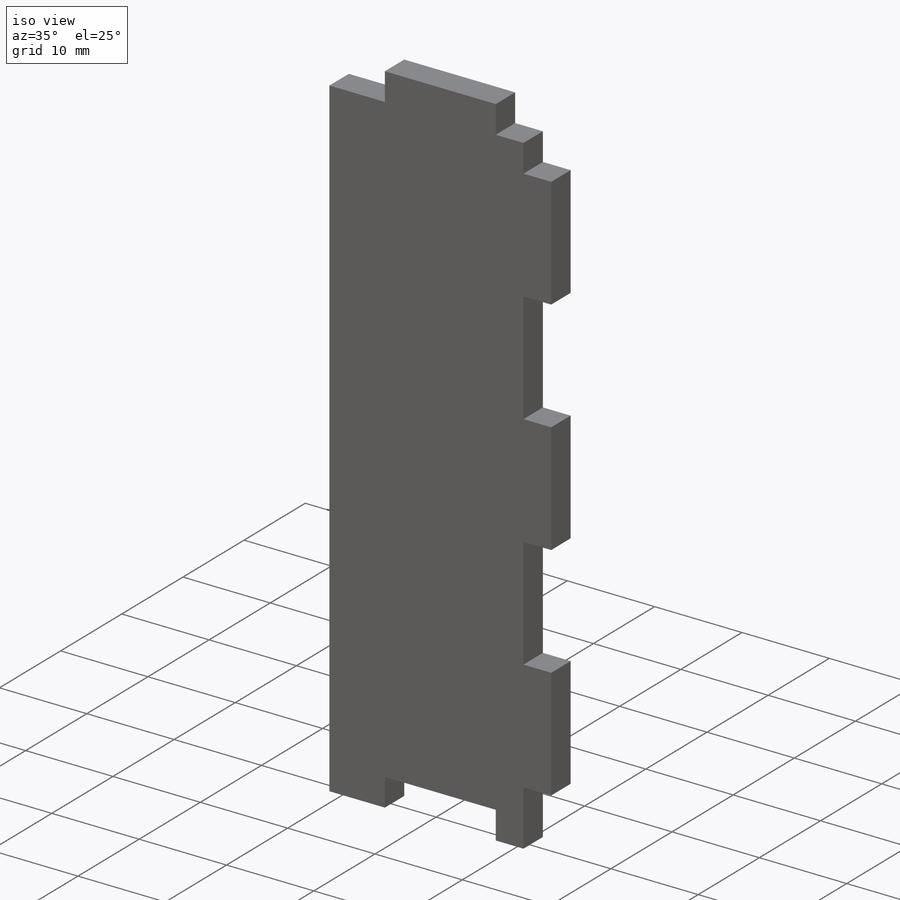
[diagram: iso view]
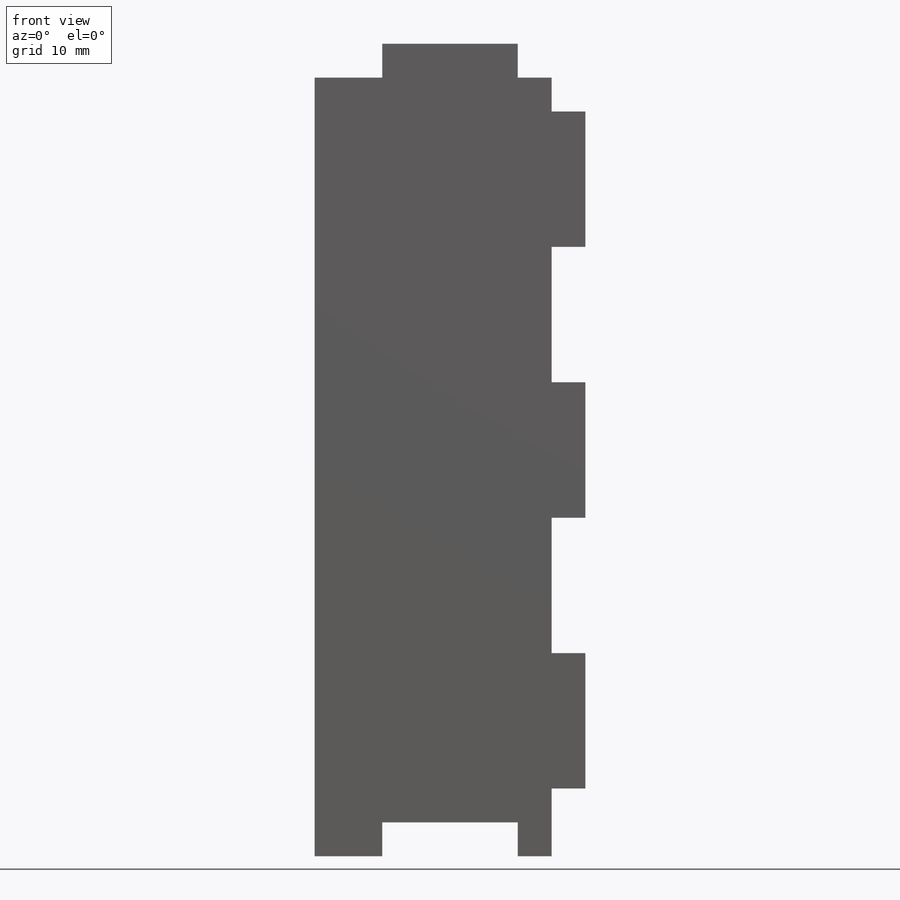
[diagram: front view]
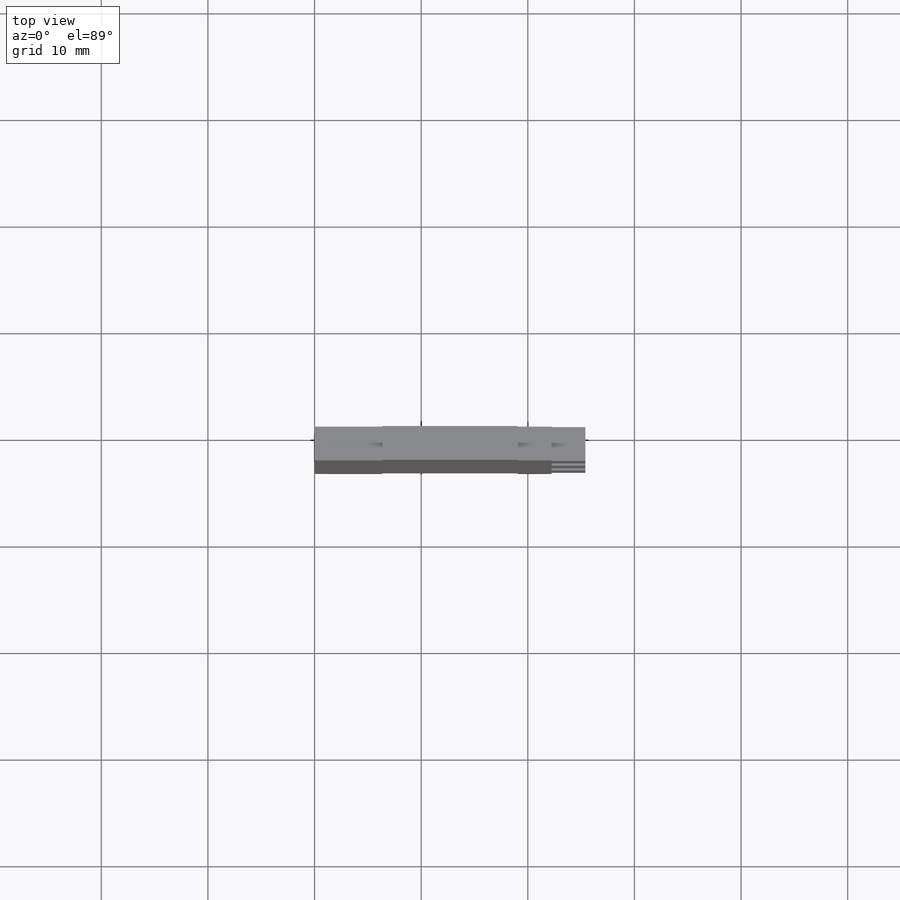
[diagram: top view]
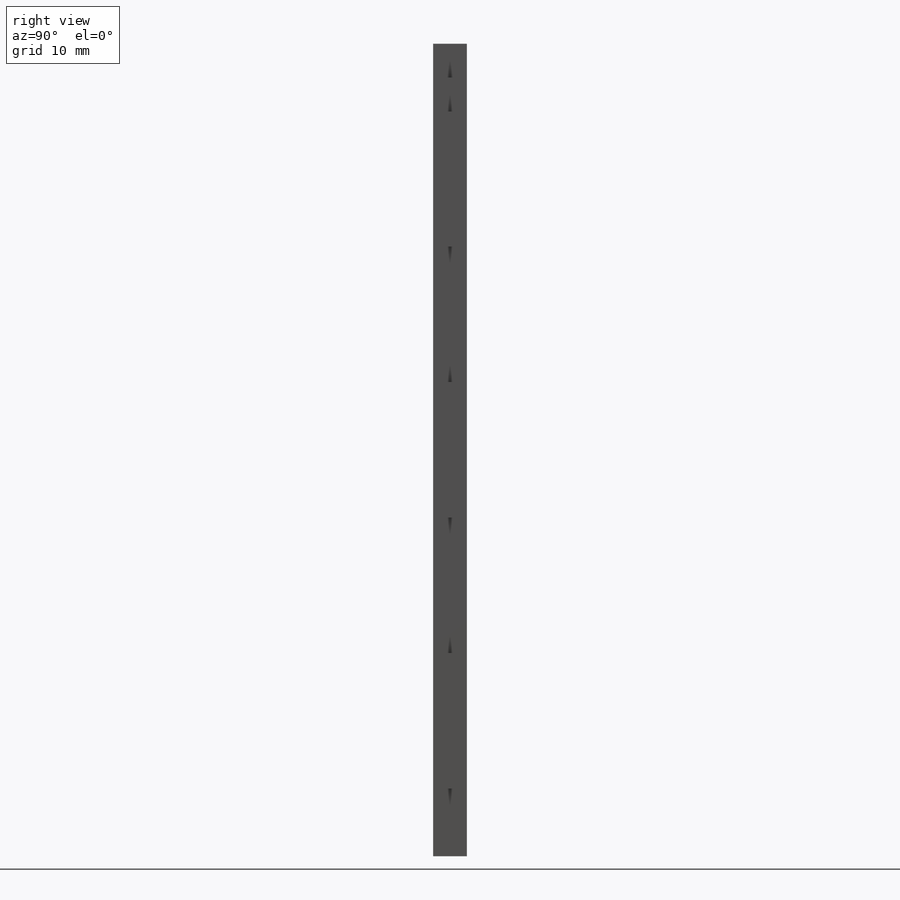
[diagram: right view]
SOLIDWORKS PART (.sldprt)
format: sldprt  version: not decoded by parser v0  size: 200,704 bytes
history: native  units: mm
features: sketch x5, cut_extrude x4, pattern_linear x3, material x1, extrude x1 (+17 scaffold rows collapsed)
feature tree (31):
  scaffold x17  (default folders/planes/origin — collapsed)
  material  "Material <not specified>"
  sketch  "Sketch1"  dims[D1=76.2mm D2=25.4mm]
  extrude  "Extrude1"  Depth=3.175mm
  sketch  "Sketch3"  dims[D1=6.35mm D2=3.175mm D3=6.35mm]
  cut_extrude  "Cut-Extrude1"  Depth=3.175mm
  pattern_linear  "LPattern1"  Count1=3 Count2=1 Spacing1=69.85mm Spacing2=2.54mm
  sketch  "Sketch4"  dims[D1=12.7mm D2=3.175mm D3=19.05mm]
  cut_extrude  "Cut-Extrude2"  Depth=3.175mm
  pattern_linear  "LPattern2"  Count1=2 Count2=1 Spacing1=25.4mm Spacing2=2.54mm
  sketch  "Sketch5"  dims[D1=6.35mm D2=12.7mm D3=3.175mm]
  cut_extrude  "Cut-Extrude3"  Depth=3.175mm
  sketch  "Sketch6"  dims[D1=6.35mm D2=3.175mm]
  cut_extrude  "Cut-Extrude4"  Depth=3.175mm
  pattern_linear  "LPattern3"  Count1=2 Count2=1 Spacing1=19.05mm Spacing2=2.54mm
decode coverage: 13 of 13 modeling features carry decoded parameters
note: suppression state not decoded; provenance and decode notes live in map.json
